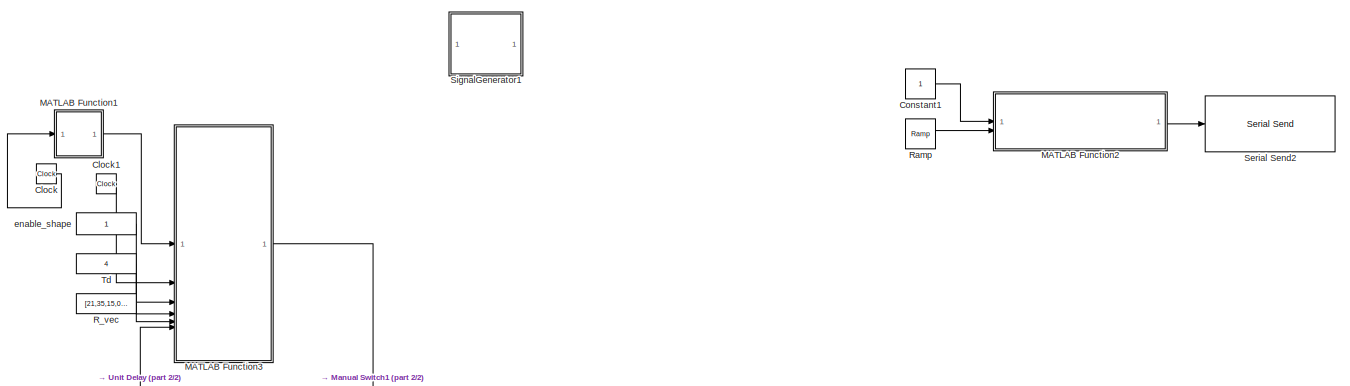
[diagram: root canvas - part 1/2, full width, top band]
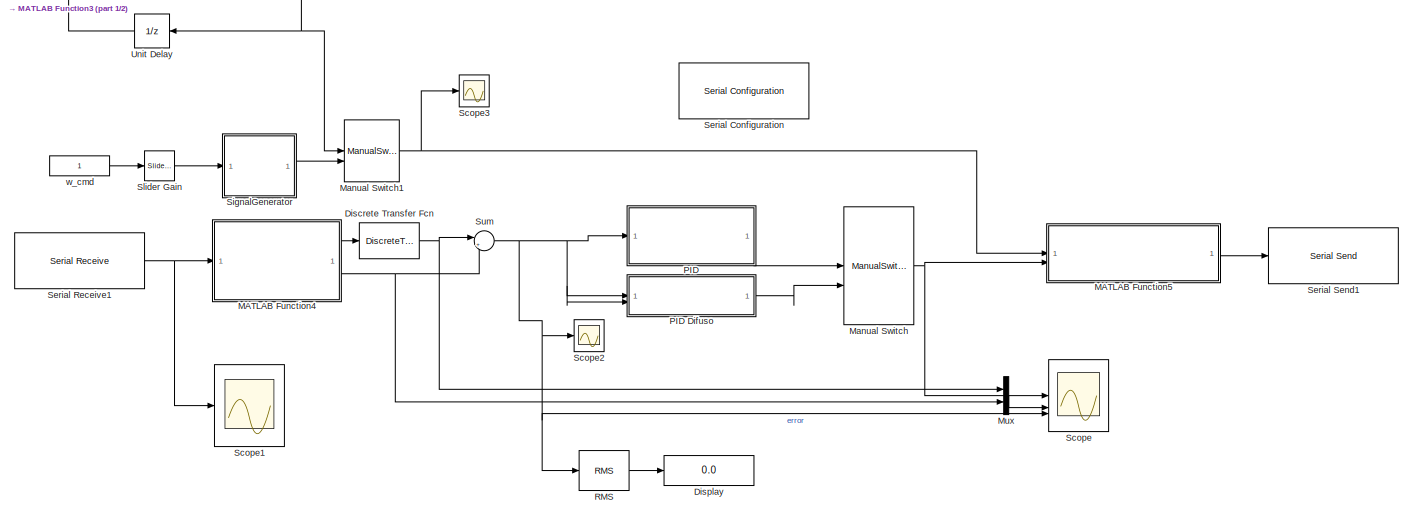
[diagram: root canvas - part 2/2, full width, bottom band]
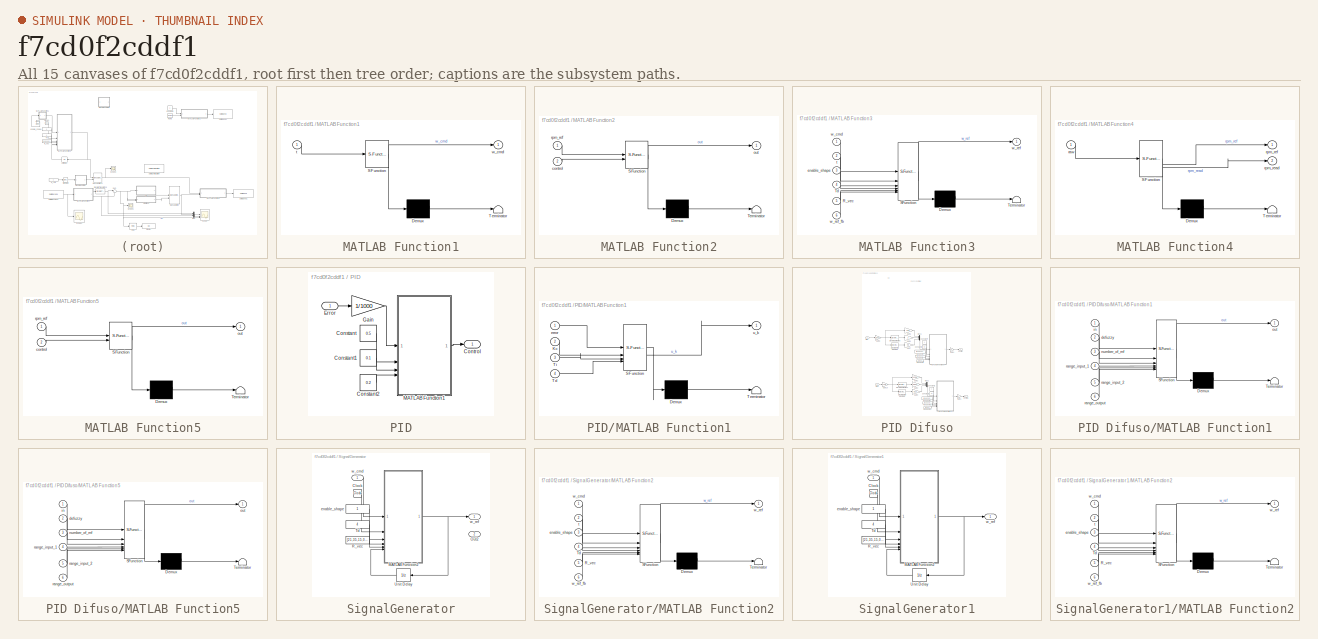
[diagram: thumbnail index - all 15 canvases of the model, root first then tree order]
MODEL slx_f7cd0f2cddf1
KIND model
CONFIG AbsTol = auto
CONFIG EnableMultiTasking = off
CONFIG FixedStep = 0.01
CONFIG MaxStep = auto
CONFIG MinStep = auto
CONFIG RelTol = 1e-3
CONFIG SampleTimeConstraint = Unconstrained
CONFIG SolverName = ode8
CONFIG StartTime = 0.0
CONFIG StopTime = inf
BLOCK [Clock] Clock
BLOCK [Clock] Clock1
BLOCK [Constant] Constant1
  Commented = on
BLOCK [DiscreteTransferFcn] Discrete Transfer Fcn
  Denominator = [1 -0.98]
  InputPortMap = u0
  Numerator = [0.02]
BLOCK [Display] Display
  Decimation = 1
BLOCK [SubSystem] MATLAB Function1
  ErrorFcn = Stateflow.Translate.translate
  PermitHierarchicalResolution = ExplicitOnly
  SFBlockType = MATLAB Function
  TreatAsAtomicUnit = on
BLOCK [Demux] MATLAB Function1/ Demux 
  Outputs = 1
BLOCK [S-Function] MATLAB Function1/ SFunction 
  EnableBusSupport = off
  FunctionName = sf_sfun
  PortCounts = [1 2]
  SFcnIsStateOwnerBlock = off
  SFunctionDeploymentMode = off
  Tag = Stateflow S-Function 5
BLOCK [Terminator] MATLAB Function1/ Terminator 
BLOCK [Inport] MATLAB Function1/t
BLOCK [Outport] MATLAB Function1/w_cmd
BLOCK [SubSystem] MATLAB Function2
  Commented = on
  ErrorFcn = Stateflow.Translate.translate
  PermitHierarchicalResolution = ExplicitOnly
  SFBlockType = MATLAB Function
  TreatAsAtomicUnit = on
BLOCK [Demux] MATLAB Function2/ Demux 
  Outputs = 1
BLOCK [S-Function] MATLAB Function2/ SFunction 
  EnableBusSupport = off
  FunctionName = sf_sfun
  PortCounts = [2 2]
  SFcnIsStateOwnerBlock = off
  SFunctionDeploymentMode = off
  Tag = Stateflow S-Function 1
BLOCK [Terminator] MATLAB Function2/ Terminator 
BLOCK [Inport] MATLAB Function2/control
  Port = 2
BLOCK [Outport] MATLAB Function2/out
BLOCK [Inport] MATLAB Function2/rpm_ref
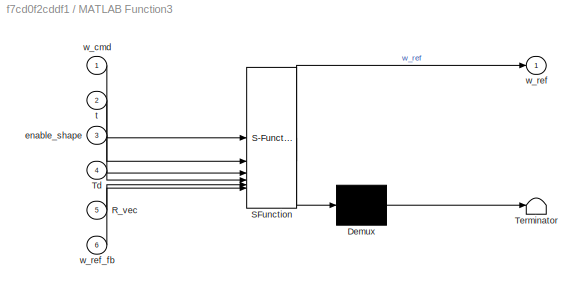
BLOCK [SubSystem] MATLAB Function3
  ErrorFcn = Stateflow.Translate.translate
  PermitHierarchicalResolution = ExplicitOnly
  SFBlockType = MATLAB Function
  TreatAsAtomicUnit = on
BLOCK [Demux] MATLAB Function3/ Demux 
  Outputs = 1
BLOCK [S-Function] MATLAB Function3/ SFunction 
  EnableBusSupport = off
  FunctionName = sf_sfun
  PortCounts = [6 2]
  SFcnIsStateOwnerBlock = off
  SFunctionDeploymentMode = off
  Tag = Stateflow S-Function 7
BLOCK [Terminator] MATLAB Function3/ Terminator 
BLOCK [Inport] MATLAB Function3/R_vec
  Port = 5
BLOCK [Inport] MATLAB Function3/Td
  Port = 4
BLOCK [Inport] MATLAB Function3/enable_shape
  Port = 3
BLOCK [Inport] MATLAB Function3/t
  Port = 2
BLOCK [Inport] MATLAB Function3/w_cmd
BLOCK [Outport] MATLAB Function3/w_ref
BLOCK [Inport] MATLAB Function3/w_ref_fb
  Port = 6
BLOCK [SubSystem] MATLAB Function4
  ErrorFcn = Stateflow.Translate.translate
  PermitHierarchicalResolution = ExplicitOnly
  SFBlockType = MATLAB Function
  TreatAsAtomicUnit = on
BLOCK [Demux] MATLAB Function4/ Demux 
  Outputs = 1
BLOCK [S-Function] MATLAB Function4/ SFunction 
  EnableBusSupport = off
  FunctionName = sf_sfun
  PortCounts = [1 3]
  SFcnIsStateOwnerBlock = off
  SFunctionDeploymentMode = off
  Tag = Stateflow S-Function 6
BLOCK [Terminator] MATLAB Function4/ Terminator 
BLOCK [Inport] MATLAB Function4/raw
BLOCK [Outport] MATLAB Function4/rpm_read
  Port = 2
BLOCK [Outport] MATLAB Function4/rpm_ref
BLOCK [SubSystem] MATLAB Function5
  ErrorFcn = Stateflow.Translate.translate
  PermitHierarchicalResolution = ExplicitOnly
  SFBlockType = MATLAB Function
  TreatAsAtomicUnit = on
BLOCK [Demux] MATLAB Function5/ Demux 
  Outputs = 1
BLOCK [S-Function] MATLAB Function5/ SFunction 
  EnableBusSupport = off
  FunctionName = sf_sfun
  PortCounts = [2 2]
  SFcnIsStateOwnerBlock = off
  SFunctionDeploymentMode = off
  Tag = Stateflow S-Function 9
BLOCK [Terminator] MATLAB Function5/ Terminator 
BLOCK [Inport] MATLAB Function5/control
  Port = 2
BLOCK [Outport] MATLAB Function5/out
BLOCK [Inport] MATLAB Function5/rpm_ref
BLOCK [ManualSwitch] Manual Switch
  CurrentSetting = 0
BLOCK [ManualSwitch] Manual Switch1
  CurrentSetting = 0
BLOCK [Mux] Mux
  DisplayOption = bar
  Inputs = 2
BLOCK [SubSystem] PID
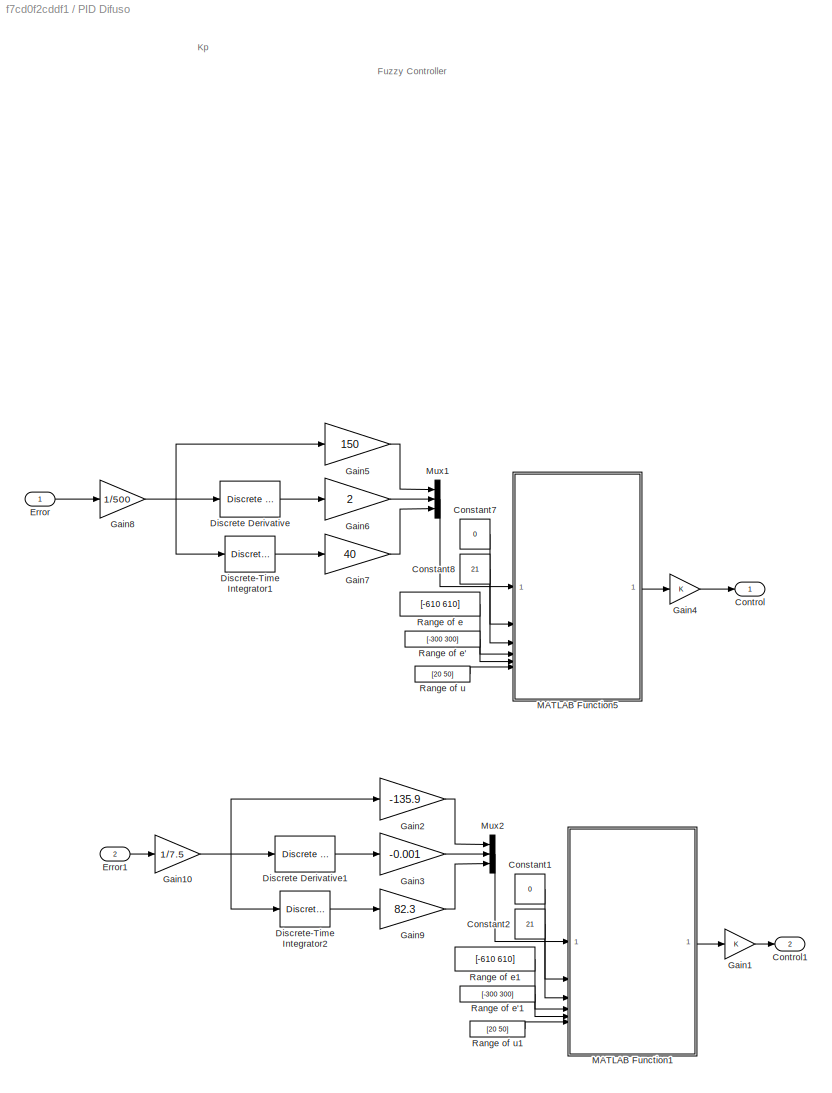
BLOCK [SubSystem] PID Difuso
BLOCK [Constant] PID Difuso/Constant1
  Value = 0
BLOCK [Constant] PID Difuso/Constant2
  Value = 21
BLOCK [Constant] PID Difuso/Constant7
  Value = 0
BLOCK [Constant] PID Difuso/Constant8
  Value = 21
BLOCK [Outport] PID Difuso/Control
BLOCK [Outport] PID Difuso/Control1
  Port = 2
BLOCK [Reference] PID Difuso/Discrete Derivative  REF=simulink/Discrete/Discrete Derivative
  SourceBlock = simulink/Discrete/Discrete Derivative
  SourceType = Discrete Derivative
BLOCK [Reference] PID Difuso/Discrete Derivative1  REF=simulink/Discrete/Discrete Derivative
  SourceBlock = simulink/Discrete/Discrete Derivative
  SourceType = Discrete Derivative
BLOCK [DiscreteIntegrator] PID Difuso/Discrete-Time Integrator1
  ICPrevOutput = DiscIntNeverNeededParam
  ICPrevScaledInput = DiscIntNeverNeededParam
  InitialConditionSetting = Auto
  LimitOutput = on
  LowerSaturationLimit = 0
  SampleTime = 0.01
  UpperSaturationLimit = 65
BLOCK [DiscreteIntegrator] PID Difuso/Discrete-Time Integrator2
  ICPrevOutput = DiscIntNeverNeededParam
  ICPrevScaledInput = DiscIntNeverNeededParam
  InitialConditionSetting = Auto
  LimitOutput = on
  LowerSaturationLimit = 0
  SampleTime = 0.01
  UpperSaturationLimit = 65
BLOCK [Inport] PID Difuso/Error
BLOCK [Inport] PID Difuso/Error1
  Port = 2
BLOCK [Gain] PID Difuso/Gain1
BLOCK [Gain] PID Difuso/Gain10
  Gain = 1/7.5
BLOCK [Gain] PID Difuso/Gain2
  Gain = -135.9
BLOCK [Gain] PID Difuso/Gain3
  Gain = -0.001
BLOCK [Gain] PID Difuso/Gain4
BLOCK [Gain] PID Difuso/Gain5
  Gain = 150
BLOCK [Gain] PID Difuso/Gain6
  Gain = 2
BLOCK [Gain] PID Difuso/Gain7
  Gain = 40
BLOCK [Gain] PID Difuso/Gain8
  Gain = 1/500
BLOCK [Gain] PID Difuso/Gain9
  Gain = 82.3
BLOCK [SubSystem] PID Difuso/MATLAB Function1
  ErrorFcn = Stateflow.Translate.translate
  PermitHierarchicalResolution = ExplicitOnly
  SFBlockType = MATLAB Function
  TreatAsAtomicUnit = on
BLOCK [Demux] PID Difuso/MATLAB Function1/ Demux 
  Outputs = 1
BLOCK [S-Function] PID Difuso/MATLAB Function1/ SFunction 
  EnableBusSupport = off
  FunctionName = sf_sfun
  PortCounts = [6 2]
  SFcnIsStateOwnerBlock = off
  SFunctionDeploymentMode = off
  Tag = Stateflow S-Function 10
BLOCK [Terminator] PID Difuso/MATLAB Function1/ Terminator 
BLOCK [Inport] PID Difuso/MATLAB Function1/defuzzy
  Port = 2
BLOCK [Inport] PID Difuso/MATLAB Function1/in
BLOCK [Inport] PID Difuso/MATLAB Function1/number_of_mf
  Port = 3
BLOCK [Outport] PID Difuso/MATLAB Function1/out
BLOCK [Inport] PID Difuso/MATLAB Function1/range_input_1
  Port = 4
BLOCK [Inport] PID Difuso/MATLAB Function1/range_input_2
  Port = 5
BLOCK [Inport] PID Difuso/MATLAB Function1/range_output
  Port = 6
BLOCK [SubSystem] PID Difuso/MATLAB Function5
  ErrorFcn = Stateflow.Translate.translate
  PermitHierarchicalResolution = ExplicitOnly
  SFBlockType = MATLAB Function
  TreatAsAtomicUnit = on
BLOCK [Demux] PID Difuso/MATLAB Function5/ Demux 
  Outputs = 1
BLOCK [S-Function] PID Difuso/MATLAB Function5/ SFunction 
  EnableBusSupport = off
  FunctionName = sf_sfun
  PortCounts = [6 2]
  SFcnIsStateOwnerBlock = off
  SFunctionDeploymentMode = off
  Tag = Stateflow S-Function 8
BLOCK [Terminator] PID Difuso/MATLAB Function5/ Terminator 
BLOCK [Inport] PID Difuso/MATLAB Function5/defuzzy
  Port = 2
BLOCK [Inport] PID Difuso/MATLAB Function5/in
BLOCK [Inport] PID Difuso/MATLAB Function5/number_of_mf
  Port = 3
BLOCK [Outport] PID Difuso/MATLAB Function5/out
BLOCK [Inport] PID Difuso/MATLAB Function5/range_input_1
  Port = 4
BLOCK [Inport] PID Difuso/MATLAB Function5/range_input_2
  Port = 5
BLOCK [Inport] PID Difuso/MATLAB Function5/range_output
  Port = 6
BLOCK [Mux] PID Difuso/Mux1
  DisplayOption = bar
  Inputs = 3
BLOCK [Mux] PID Difuso/Mux2
  DisplayOption = bar
  Inputs = 3
BLOCK [Constant] PID Difuso/Range of e
  Value = [-610 610]
BLOCK [Constant] PID Difuso/Range of e'
  Value = [-300 300]
BLOCK [Constant] PID Difuso/Range of e'1
  Value = [-300 300]
BLOCK [Constant] PID Difuso/Range of e1
  Value = [-610 610]
BLOCK [Constant] PID Difuso/Range of u
  Value = [20 50]
BLOCK [Constant] PID Difuso/Range of u1
  Value = [20 50]
BLOCK [Constant] PID/Constant
  Value = 0.5
BLOCK [Constant] PID/Constant1
  Value = 0.1
BLOCK [Constant] PID/Constant2
  Value = 0.2
BLOCK [Outport] PID/Control
BLOCK [Inport] PID/Error
BLOCK [Gain] PID/Gain
  Gain = 1/1000
BLOCK [SubSystem] PID/MATLAB Function1
  ErrorFcn = Stateflow.Translate.translate
  PermitHierarchicalResolution = ExplicitOnly
  SFBlockType = MATLAB Function
  TreatAsAtomicUnit = on
BLOCK [Demux] PID/MATLAB Function1/ Demux 
  Outputs = 1
BLOCK [S-Function] PID/MATLAB Function1/ SFunction 
  EnableBusSupport = off
  FunctionName = sf_sfun
  PortCounts = [4 2]
  SFcnIsStateOwnerBlock = off
  SFunctionDeploymentMode = off
  Tag = Stateflow S-Function 2
BLOCK [Terminator] PID/MATLAB Function1/ Terminator 
BLOCK [Inport] PID/MATLAB Function1/Kc
  Port = 2
BLOCK [Inport] PID/MATLAB Function1/Td
  Port = 4
BLOCK [Inport] PID/MATLAB Function1/Ti
  Port = 3
BLOCK [Inport] PID/MATLAB Function1/error
BLOCK [Outport] PID/MATLAB Function1/u_k
BLOCK [Reference] RMS  REF=spsRMSLib/RMS
  LibrarySourceBlock = sps_lib/Sensors and Measurements/RMS
  SourceBlock = spsRMSLib/RMS
  SourceType = RMS
BLOCK [Constant] R_vec
  SampleTime = -1
  Value = [21,35,15,0,0,0]
BLOCK [Reference] Ramp  REF=simulink/Sources/Ramp
  Commented = on
  SourceBlock = simulink/Sources/Ramp
  SourceType = Ramp
BLOCK [Scope] Scope
  ActiveDisplayYMaximum = 53.75
  ActiveDisplayYMinimum = 16.25
  Floating = off
  GraphicalSettings = {"Style":{"BackgroundColor":[0.12941176470588237,0.12941176470588237,0.12941176470588237],"AxesColor":[0.07058823529411765,0.07058823529411765,0.07058823529411765],"LabelsColor":[0.8509803921568627,0.8509803921568627,0.8509803921568627],"PreserveColors":false,"Visible":[true,true,true,true],"LineStyle":["-","-","-","-"],"LineWidth":[1.5,1.5,1.5,1.5],"BarWidth":[0.9,0.9,0.9,0.9],"LineColor":["auto"...<+3030ch>
  LayoutDimensionsString = [3,1]
  MultipleDisplayCache = [{"MaxYLimMag":53.75,"MaxYLimReal":53.75,"MinYLimMag":16.25,"MinYLimReal":16.25,"PlotAsMagnitudePhase":false,"ShowGrid":true,"ShowLegend":true,"Title":"%<SignalLabel>","YLabel":""},{"MaxYLimMag":1306.125,"MaxYLimReal":1306.125,"MinYLimMag":0,"MinYLimReal":-145.12499999999997,"PlotAsMagnitudePhase":false,"ShowGrid":true,"ShowLegend":true,"Title":"%<SignalLabel>","YLabel":""},{"MaxYLimMag":1349.6163...<+193ch>
  NumInputPorts = 3
  ScopeFrameLocation = window
  ShowLegend = on
  Visible = on
  WasSavedAsWebScope = on
  WindowPosition = [602.000000,93.000000,1126.000000,864.000000,]
BLOCK [Scope] Scope1
  ActiveDisplayYMaximum = 73439.75
  ActiveDisplayYMinimum = -8157.7499999999982
  DataLoggingVariableName = ScopeData1
  Floating = off
  GraphicalSettings = {"Style":{"BackgroundColor":[0.12941176470588237,0.12941176470588237,0.12941176470588237],"AxesColor":[0.07058823529411765,0.07058823529411765,0.07058823529411765],"LabelsColor":[0.8509803921568627,0.8509803921568627,0.8509803921568627],"PreserveColors":false,"Visible":[true,true],"LineStyle":["-","-"],"LineWidth":[1.5,1.5],"BarWidth":[0.9,0.9],"LineColor":["auto","auto"],"LineFaceAlpha":[1,1],"Li...<+2098ch>
  LayoutDimensionsString = [1,1]
  MultipleDisplayCache = [{"MaxYLimMag":73439.75,"MaxYLimReal":73439.75,"MinYLimMag":0,"MinYLimReal":-8157.7499999999982,"PlotAsMagnitudePhase":false,"ShowGrid":true,"ShowLegend":true,"Title":"%<SignalLabel>","YLabel":""}]
  NumInputPorts = 1
  ScopeFrameLocation = window
  ShowLegend = on
  WasSavedAsWebScope = on
  WindowPosition = [454.000000,350.000000,1054.000000,699.000000,]
BLOCK [Scope] Scope2
  ActiveDisplayYMaximum = 1049.75
  ActiveDisplayYMinimum = 552.25
  DataLoggingVariableName = ScopeData2
  Floating = off
  GraphicalSettings = {"Style":{"BackgroundColor":[0.12941176470588237,0.12941176470588237,0.12941176470588237],"AxesColor":[0.07058823529411765,0.07058823529411765,0.07058823529411765],"LabelsColor":[0.8509803921568627,0.8509803921568627,0.8509803921568627],"PreserveColors":false,"Visible":[true],"LineStyle":["-"],"LineWidth":[1.5],"BarWidth":[0.9],"LineColor":["auto"],"LineFaceAlpha":[1],"LineEdgeAlpha":[1],"Marker":...<+1892ch>
  MultipleDisplayCache = [{"MaxYLimMag":1049.75,"MaxYLimReal":1049.75,"MinYLimMag":552.25,"MinYLimReal":552.25,"PlotAsMagnitudePhase":false,"ShowGrid":true,"ShowLegend":false,"Title":"%<SignalLabel>","YLabel":""}]
  NumInputPorts = 1
  ScopeFrameLocation = window
  WasSavedAsWebScope = on
  WindowPosition = [106.000000,355.000000,835.000000,537.000000,]
BLOCK [Scope] Scope3
  ActiveDisplayYMaximum = 1
  ActiveDisplayYMinimum = -1
  DataLoggingVariableName = ScopeData3
  Floating = off
  GraphicalSettings = {"Style":{"BackgroundColor":[0.12941176470588237,0.12941176470588237,0.12941176470588237],"AxesColor":[0.07058823529411765,0.07058823529411765,0.07058823529411765],"LabelsColor":[0.8509803921568627,0.8509803921568627,0.8509803921568627],"PreserveColors":false,"Visible":[true],"LineStyle":["-"],"LineWidth":[1.5],"BarWidth":[0.9],"LineColor":["auto"],"LineFaceAlpha":[1],"LineEdgeAlpha":[1],"Marker":...<+1910ch>
  MultipleDisplayCache = [{"MaxYLimMag":1,"MaxYLimReal":1,"MinYLimMag":0,"MinYLimReal":-1,"PlotAsMagnitudePhase":false,"ShowGrid":true,"ShowLegend":false,"Title":"%<SignalLabel>","YLabel":""}]
  NumInputPorts = 1
  ScopeFrameLocation = window
  WasSavedAsWebScope = on
  WindowPosition = [543.000000,309.000000,835.000000,537.000000,]
BLOCK [Reference] Serial Configuration  REF=instrumentseriallib/Serial Configuration
  LibrarySourceBlock = instrumentlib/Serial Configuration
  Priority = -200000
  SourceBlock = instrumentseriallib/Serial Configuration
  SourceType = system.SerialConfiguration
BLOCK [Reference] Serial Receive1  REF=instrumentseriallib/Serial Receive
  LibrarySourceBlock = instrumentlib/Serial Receive
  Priority = 1
  SourceBlock = instrumentseriallib/Serial Receive
  SourceType = system.SerialReceive
BLOCK [Reference] Serial Send1  REF=instrumentseriallib/Serial Send
  LibrarySourceBlock = instrumentlib/Serial Send
  Priority = 1
  SourceBlock = instrumentseriallib/Serial Send
  SourceType = system.SerialSend
BLOCK [Reference] Serial Send2  REF=instrumentseriallib/Serial Send
  Commented = on
  LibrarySourceBlock = instrumentlib/Serial Send
  Priority = 1
  SourceBlock = instrumentseriallib/Serial Send
  SourceType = system.SerialSend
BLOCK [SubSystem] SignalGenerator
  PortSchema = {"entries":[{"content":{"sides":[{"content":{"connectorIds":["In1"]},"type":"ConnectorPlacement.EquallySpacedRectSide","uuid":"4cce06af-7d16-41fd-b2cd-3f9504ea5661"},{"content":{"connectorIds":["Out1"],"side":"RIGHT"},"type":"ConnectorPlacement.EquallySpacedRectSide","uuid":"e46f2018-f9b0-4466-8f5a-c2ac3a5d4f95"},{"content":{"side":"TOP"},"type":"ConnectorPlacement.EquallySpacedRectSide","uuid":"7...<+372ch>
BLOCK [Clock] SignalGenerator/Clock
BLOCK [SubSystem] SignalGenerator/MATLAB Function2
  ErrorFcn = Stateflow.Translate.translate
  PermitHierarchicalResolution = ExplicitOnly
  SFBlockType = MATLAB Function
  TreatAsAtomicUnit = on
BLOCK [Demux] SignalGenerator/MATLAB Function2/ Demux 
  Outputs = 1
BLOCK [S-Function] SignalGenerator/MATLAB Function2/ SFunction 
  EnableBusSupport = off
  FunctionName = sf_sfun
  PortCounts = [6 2]
  SFcnIsStateOwnerBlock = off
  SFunctionDeploymentMode = off
  Tag = Stateflow S-Function 4
BLOCK [Terminator] SignalGenerator/MATLAB Function2/ Terminator 
BLOCK [Inport] SignalGenerator/MATLAB Function2/R_vec
  Port = 5
BLOCK [Inport] SignalGenerator/MATLAB Function2/Td
  Port = 4
BLOCK [Inport] SignalGenerator/MATLAB Function2/enable_shape
  Port = 3
BLOCK [Inport] SignalGenerator/MATLAB Function2/t
  Port = 2
BLOCK [Inport] SignalGenerator/MATLAB Function2/w_cmd
BLOCK [Outport] SignalGenerator/MATLAB Function2/w_ref
BLOCK [Inport] SignalGenerator/MATLAB Function2/w_ref_fb
  Port = 6
BLOCK [Outport] SignalGenerator/Out2
  Port = 2
BLOCK [Constant] SignalGenerator/R_vec
  SampleTime = -1
  Value = [21,35,15,0,0,0]
BLOCK [Constant] SignalGenerator/Td
  SampleTime = -1
  Value = 4
BLOCK [UnitDelay] SignalGenerator/Unit Delay
  HasFrameUpgradeWarning = on
  NameLocation = top
  SampleTime = -1
BLOCK [Constant] SignalGenerator/enable_shape
  SampleTime = -1
BLOCK [Inport] SignalGenerator/w_cmd
BLOCK [Outport] SignalGenerator/w_ref
BLOCK [SubSystem] SignalGenerator1
  Commented = on
BLOCK [Clock] SignalGenerator1/Clock
BLOCK [SubSystem] SignalGenerator1/MATLAB Function2
  ErrorFcn = Stateflow.Translate.translate
  PermitHierarchicalResolution = ExplicitOnly
  SFBlockType = MATLAB Function
  TreatAsAtomicUnit = on
BLOCK [Demux] SignalGenerator1/MATLAB Function2/ Demux 
  Outputs = 1
BLOCK [S-Function] SignalGenerator1/MATLAB Function2/ SFunction 
  EnableBusSupport = off
  FunctionName = sf_sfun
  PortCounts = [6 2]
  SFcnIsStateOwnerBlock = off
  SFunctionDeploymentMode = off
  Tag = Stateflow S-Function 3
BLOCK [Terminator] SignalGenerator1/MATLAB Function2/ Terminator 
BLOCK [Inport] SignalGenerator1/MATLAB Function2/R_vec
  Port = 5
BLOCK [Inport] SignalGenerator1/MATLAB Function2/Td
  Port = 4
BLOCK [Inport] SignalGenerator1/MATLAB Function2/enable_shape
  Port = 3
BLOCK [Inport] SignalGenerator1/MATLAB Function2/t
  Port = 2
BLOCK [Inport] SignalGenerator1/MATLAB Function2/w_cmd
BLOCK [Outport] SignalGenerator1/MATLAB Function2/w_ref
BLOCK [Inport] SignalGenerator1/MATLAB Function2/w_ref_fb
  Port = 6
BLOCK [Constant] SignalGenerator1/R_vec
  SampleTime = -1
  Value = [21,35,15,0,0,0]
BLOCK [Constant] SignalGenerator1/Td
  SampleTime = -1
  Value = 4
BLOCK [UnitDelay] SignalGenerator1/Unit Delay
  HasFrameUpgradeWarning = on
  NameLocation = top
  SampleTime = -1
BLOCK [Constant] SignalGenerator1/enable_shape
  SampleTime = -1
BLOCK [Inport] SignalGenerator1/w_cmd
BLOCK [Outport] SignalGenerator1/w_ref
BLOCK [Reference] Slider Gain  REF=simulink/Math
Operations/Slider
Gain
  SourceBlock = simulink/Math\nOperations/Slider\nGain
  SourceType = Slider Gain
BLOCK [Sum] Sum
  Inputs = |+-
BLOCK [Constant] Td
  SampleTime = -1
  Value = 4
BLOCK [UnitDelay] Unit Delay
  HasFrameUpgradeWarning = on
  NameLocation = top
  SampleTime = -1
BLOCK [Constant] enable_shape
  SampleTime = -1
BLOCK [Constant] w_cmd
  SampleTime = -1
ANNOTATION PID Difuso: Fuzzy Controller
ANNOTATION PID Difuso: Kp
LINE Clock1:1 -> MATLAB Function3:2
LINE Clock:1 -> MATLAB Function1:1
LINE Constant1:1 -> MATLAB Function2:1
NET Discrete Transfer Fcn:1 -> Mux:1, Sum:1
LINE MATLAB Function1:1 -> MATLAB Function3:1
LINE MATLAB Function2:1 -> Serial Send2:1
NET MATLAB Function3:1 -> Manual Switch1:1, Unit Delay:1
LINE MATLAB Function4:1 -> Discrete Transfer Fcn:1
NET MATLAB Function4:2 -> Mux:2, Sum:2
LINE MATLAB Function5:1 -> Serial Send1:1
NET Manual Switch1:1 -> MATLAB Function5:1, Scope3:1
NET Manual Switch:1 -> MATLAB Function5:2, Scope:1
LINE Mux:1 -> Scope:2
LINE PID Difuso/Constant1:1 -> PID Difuso/MATLAB Function1:2
LINE PID Difuso/Constant2:1 -> PID Difuso/MATLAB Function1:3
LINE PID Difuso/Constant7:1 -> PID Difuso/MATLAB Function5:2
LINE PID Difuso/Constant8:1 -> PID Difuso/MATLAB Function5:3
LINE PID Difuso/Discrete Derivative1:1 -> PID Difuso/Gain3:1
LINE PID Difuso/Discrete Derivative:1 -> PID Difuso/Gain6:1
LINE PID Difuso/Discrete-Time Integrator1:1 -> PID Difuso/Gain7:1
LINE PID Difuso/Discrete-Time Integrator2:1 -> PID Difuso/Gain9:1
LINE PID Difuso/Error1:1 -> PID Difuso/Gain10:1
LINE PID Difuso/Error:1 -> PID Difuso/Gain8:1
NET PID Difuso/Gain10:1 -> PID Difuso/Discrete Derivative1:1, PID Difuso/Discrete-Time Integrator2:1, PID Difuso/Gain2:1
LINE PID Difuso/Gain1:1 -> PID Difuso/Control1:1
LINE PID Difuso/Gain2:1 -> PID Difuso/Mux2:1
LINE PID Difuso/Gain3:1 -> PID Difuso/Mux2:2
LINE PID Difuso/Gain4:1 -> PID Difuso/Control:1
LINE PID Difuso/Gain5:1 -> PID Difuso/Mux1:1
LINE PID Difuso/Gain6:1 -> PID Difuso/Mux1:2
LINE PID Difuso/Gain7:1 -> PID Difuso/Mux1:3
NET PID Difuso/Gain8:1 -> PID Difuso/Discrete Derivative:1, PID Difuso/Discrete-Time Integrator1:1, PID Difuso/Gain5:1
LINE PID Difuso/Gain9:1 -> PID Difuso/Mux2:3
LINE PID Difuso/MATLAB Function1:1 -> PID Difuso/Gain1:1
LINE PID Difuso/MATLAB Function5:1 -> PID Difuso/Gain4:1
LINE PID Difuso/Mux1:1 -> PID Difuso/MATLAB Function5:1
LINE PID Difuso/Mux2:1 -> PID Difuso/MATLAB Function1:1
LINE PID Difuso/Range of e'1:1 -> PID Difuso/MATLAB Function1:5
LINE PID Difuso/Range of e':1 -> PID Difuso/MATLAB Function5:5
LINE PID Difuso/Range of e1:1 -> PID Difuso/MATLAB Function1:4
LINE PID Difuso/Range of e:1 -> PID Difuso/MATLAB Function5:4
LINE PID Difuso/Range of u1:1 -> PID Difuso/MATLAB Function1:6
LINE PID Difuso/Range of u:1 -> PID Difuso/MATLAB Function5:6
LINE PID Difuso:1 -> Manual Switch:2
LINE PID/Constant1:1 -> PID/MATLAB Function1:3
LINE PID/Constant2:1 -> PID/MATLAB Function1:4
LINE PID/Constant:1 -> PID/MATLAB Function1:2
LINE PID/Error:1 -> PID/Gain:1
LINE PID/Gain:1 -> PID/MATLAB Function1:1
LINE PID/MATLAB Function1:1 -> PID/Control:1
LINE PID:1 -> Manual Switch:1
LINE RMS:1 -> Display:1
LINE R_vec:1 -> MATLAB Function3:5
LINE Ramp:1 -> MATLAB Function2:2
NET Serial Receive1:1 -> MATLAB Function4:1, Scope1:1
LINE SignalGenerator/Clock:1 -> SignalGenerator/MATLAB Function2:2
NET SignalGenerator/MATLAB Function2:1 -> SignalGenerator/Unit Delay:1, SignalGenerator/w_ref:1
LINE SignalGenerator/R_vec:1 -> SignalGenerator/MATLAB Function2:5
LINE SignalGenerator/Td:1 -> SignalGenerator/MATLAB Function2:4
LINE SignalGenerator/Unit Delay:1 -> SignalGenerator/MATLAB Function2:6
LINE SignalGenerator/enable_shape:1 -> SignalGenerator/MATLAB Function2:3
LINE SignalGenerator/w_cmd:1 -> SignalGenerator/MATLAB Function2:1
LINE SignalGenerator1/Clock:1 -> SignalGenerator1/MATLAB Function2:2
NET SignalGenerator1/MATLAB Function2:1 -> SignalGenerator1/Unit Delay:1, SignalGenerator1/w_ref:1
LINE SignalGenerator1/R_vec:1 -> SignalGenerator1/MATLAB Function2:5
LINE SignalGenerator1/Td:1 -> SignalGenerator1/MATLAB Function2:4
LINE SignalGenerator1/Unit Delay:1 -> SignalGenerator1/MATLAB Function2:6
LINE SignalGenerator1/enable_shape:1 -> SignalGenerator1/MATLAB Function2:3
LINE SignalGenerator1/w_cmd:1 -> SignalGenerator1/MATLAB Function2:1
LINE SignalGenerator:1 -> Manual Switch1:2
LINE Slider Gain:1 -> SignalGenerator:1
NET Sum:1 -> PID Difuso:1, PID Difuso:2, PID:1, RMS:1, Scope2:1, Scope:3
LINE Td:1 -> MATLAB Function3:4
LINE Unit Delay:1 -> MATLAB Function3:6
LINE enable_shape:1 -> MATLAB Function3:3
LINE w_cmd:1 -> Slider Gain:1
note: NET lines group one-source signal fan-out (src -> all destinations, sorted); 1:1 wires keep LINE
CHART MATLAB Function5 states=1 transitions=1
  STATE_LABEL 'eML_blk_kernel()'
  STATE_LABEL 'SCRIPT:\nfunction out = packRefAndPWM(rpm_ref, control)\n% Esta función ahora empaqueta [rpm_ref, frequency_hz]\n% El \'control_signal\' (antes \'voltage\') viene de 0-60 desde el "Knob".\n\n% --- 1. Escalado lineal ---\n% Frecuencia (0-60 Hz)\ntarget_freq = control;\n\n% --- 2. Empaquetado ---\n% Convierte ambos valores a uint16 para enviar por UART\nfreq_u16 = uint16(target_freq);\nrpm_ref_u16 = uint16(rpm_ref)...<+101ch>'
CHART PID Difuso/MATLAB Function1 states=1 transitions=1
  STATE_LABEL 'eML_blk_kernel()'
  STATE_LABEL 'SCRIPT:\nfunction out = fcn(in, defuzzy, number_of_mf, range_input_1, range_input_2, range_output)\n% CONTROLADOR FUZZY PID (Fuzzy PD + I + Bias)\n% =========================================================\n% Entradas (in):\n%   in(1): Error (Escalado por K_fp)\n%   in(2): Derivada del Error (Escalado por K_fd)\n%   in(3): Acción Integral (Escalado por K_fi)\n%\n% Parámetros:\n%   defuzzy: 0 = COG (Centroi...<+3608ch>'
CHART MATLAB Function2 states=1 transitions=1
  STATE_LABEL 'eML_blk_kernel()'
  STATE_LABEL 'SCRIPT:\nfunction out = packRefAndPWM(rpm_ref, control)\n% Esta función ahora empaqueta [rpm_ref, frequency_hz]\n% El \'control_signal\' (antes \'voltage\') viene de 0-60 desde el "Knob".\n\n% --- 1. Define la escala de la SEÑAL DE CONTROL ---\ncontrol_min = 20;\ncontrol_max = 60;\n\n% --- 2. Define la escala de la FRECUENCIA de salida ---\nfreq_min = 20;     % Frecuencia mínima (0 Hz = motor detenido)\nfreq_max...<+678ch>'
CHART PID/MATLAB Function1 states=1 transitions=1
  STATE_LABEL 'eML_blk_kernel()'
  STATE_LABEL 'SCRIPT:\nfunction u_k = PID(error, Kc, Ti, Td)\n% PID discreto con salida escalada de 0–1 a 20–50\n% Entradas:\n%   error : e(k)\n%   Kc    : ganancia proporcional\n%   Ti    : tiempo integral\n%   Td    : tiempo derivativo\n\n% Parámetros internos\nTs = 0.005;   % Tiempo de muestreo (constante)\nN  = 100;    % Filtro derivativo (constante)\n\npersistent e_prev i_prev d_prev\nif isempty(e_prev)\n    e_prev = 0;\n...<+457ch>'
CHART SignalGenerator1/MATLAB Function2 states=1 transitions=1
  STATE_LABEL 'eML_blk_kernel()'
  STATE_LABEL 'SCRIPT:\nfunction w_ref = BezierRef(w_cmd, t, enable_shape, Td, R_vec, w_ref_fb)\n% =================================================================\n% VERSIÓN 6 (Corrección de arranque en cero)\n% =================================================================\n%\n% Entradas:\n%   w_cmd     : setpoint deseado (de la GUI)\n%   t         : tiempo absoluto (Clock)\n%   enable_shape : 1 = perfilar, 0 = pas...<+1893ch>'
CHART SignalGenerator/MATLAB Function2 states=1 transitions=1
  STATE_LABEL 'eML_blk_kernel()'
  STATE_LABEL 'SCRIPT:\nfunction w_ref = BezierRef(w_cmd, t, enable_shape, Td, R_vec, w_ref_fb)\n% =================================================================\n% VERSIÓN ANTERIOR (Arranca desde w_ref_fb, usualmente 0)\n% =================================================================\n%\n% Entradas:\n%   w_cmd     : setpoint deseado\n%   t         : tiempo absoluto\n%   enable_shape : 1 = perfilar, 0 = paso direc...<+1498ch>'
CHART MATLAB Function1 states=1 transitions=1
  STATE_LABEL 'eML_blk_kernel()'
  STATE_LABEL 'SCRIPT:\nfunction w_cmd = Generador_Perfil(t)\n    % Genera la señal escalón para alimentar al suavizador Bezier\n    % Secuencia: 540 -> 1160 -> 800\n    \n    % --- CONFIGURACIÓN DE TIEMPOS ---\n    % Td es 4 segundos. Dejamos un margen para que se estabilice.\n    t_inicio = 10;   % Tiempo para el primer cambio (540 -> 1160)\n    t_bajada = 20;  % Tiempo para el segundo cambio (1160 -> 800)\n    \n    % ...<+281ch>'
CHART MATLAB Function4 states=1 transitions=1
  STATE_LABEL 'eML_blk_kernel()'
  STATE_LABEL 'SCRIPT:\nfunction [rpm_ref, rpm_read] = parseRPM(raw)\n%#codegen\n% raw: 1x2 uint16 vector received from ESP32\n% rpm_read: measured RPM from encoder\n% rpm_ref:  reference RPM echoed back from ESP32\n\nrpm_read = double(raw(2));   % first  uint16 from ESP32\nrpm_ref  = double(raw(1));   % second uint16 from ESP32\nend\n'
CHART MATLAB Function3 states=1 transitions=1
  STATE_LABEL 'eML_blk_kernel()'
  STATE_LABEL 'SCRIPT:\nfunction w_ref = BezierRef(w_cmd, t, enable_shape, Td, R_vec, w_ref_fb)\n% =================================================================\n% VERSIÓN 6 (Corrección de arranque en cero)\n% =================================================================\n%\n% Entradas:\n%   w_cmd     : setpoint deseado (de la GUI)\n%   t         : tiempo absoluto (Clock)\n%   enable_shape : 1 = perfilar, 0 = pas...<+1893ch>'
CHART PID Difuso/MATLAB Function5 states=1 transitions=1
  STATE_LABEL 'eML_blk_kernel()'
  STATE_LABEL 'SCRIPT:\nfunction out = fcn(in, defuzzy, number_of_mf, range_input_1, range_input_2, range_output)\n% CONTROLADOR FUZZY PID (Fuzzy PD + I + Bias)\n% =========================================================\n% Entradas (in):\n%   in(1): Error (Escalado por K_fp)\n%   in(2): Derivada del Error (Escalado por K_fd)\n%   in(3): Acción Integral (Escalado por K_fi)\n%\n% Parámetros:\n%   defuzzy: 0 = COG (Centroi...<+3608ch>'
CHART  states=0 transitions=0
CHART  states=0 transitions=0
CHART  states=0 transitions=0
CHART  states=0 transitions=0
CHART  states=0 transitions=0
CHART  states=0 transitions=0
CHART  states=0 transitions=0
CHART  states=0 transitions=0
CHART  states=0 transitions=0
CHART  states=0 transitions=0
